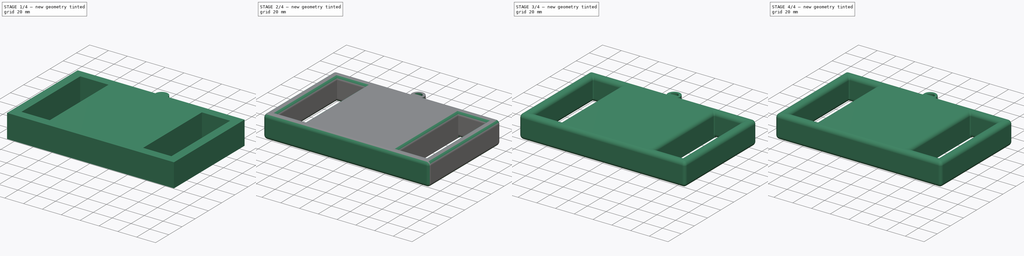
[diagram: build sequence overview — one tinted view per stage of 4, left to right]
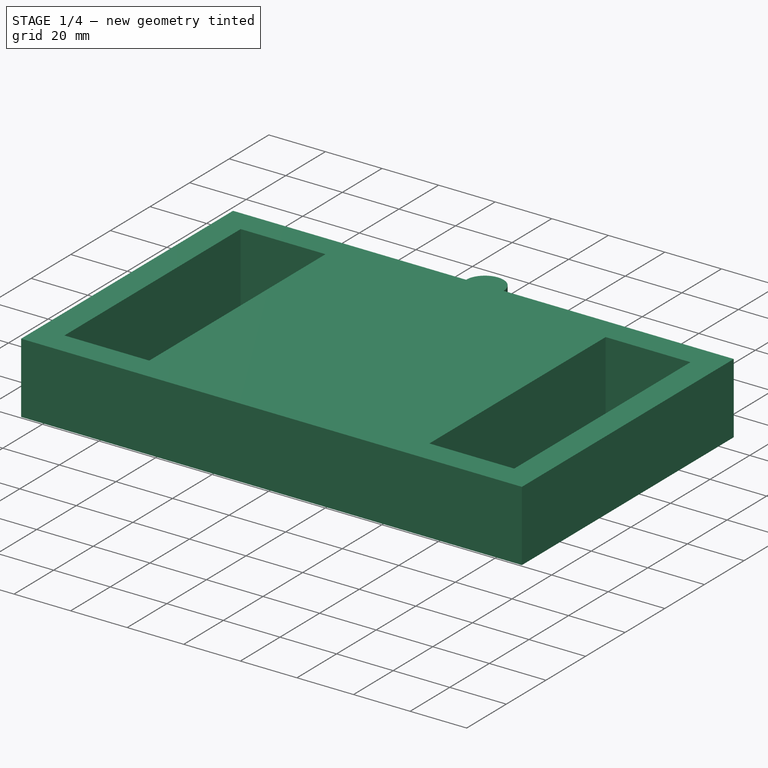
[diagram: stage 1 of 4 — iso view after this stage's code; geometry added in this stage tinted green]
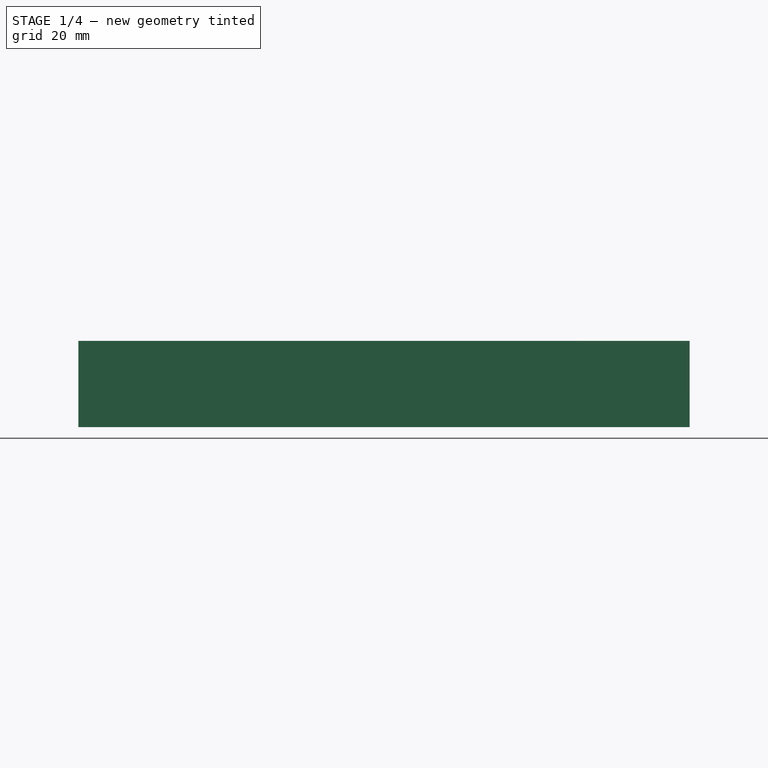
[diagram: stage 1 of 4 — front view after this stage's code; geometry added in this stage tinted green]
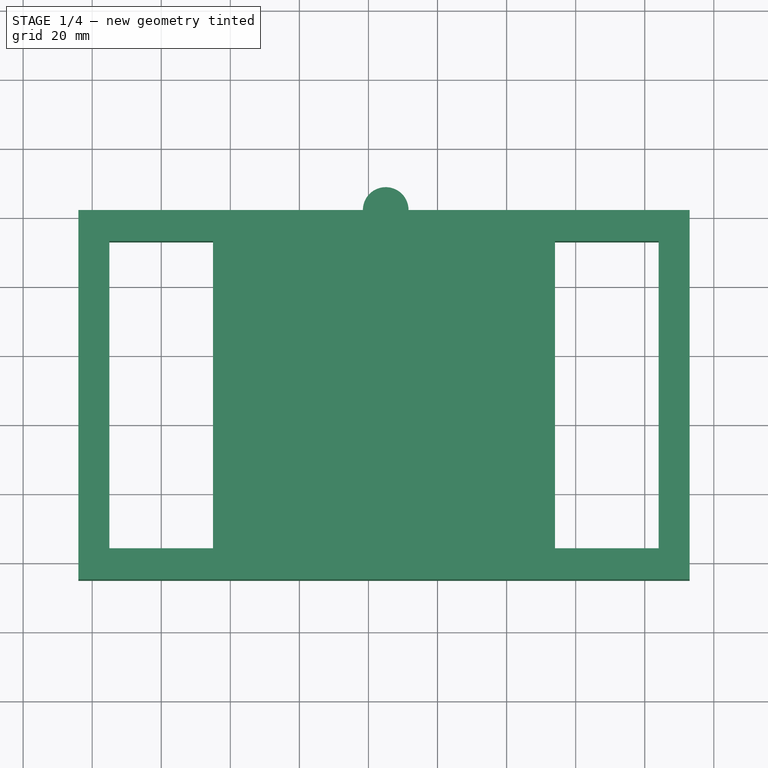
[diagram: stage 1 of 4 — top view after this stage's code; geometry added in this stage tinted green]
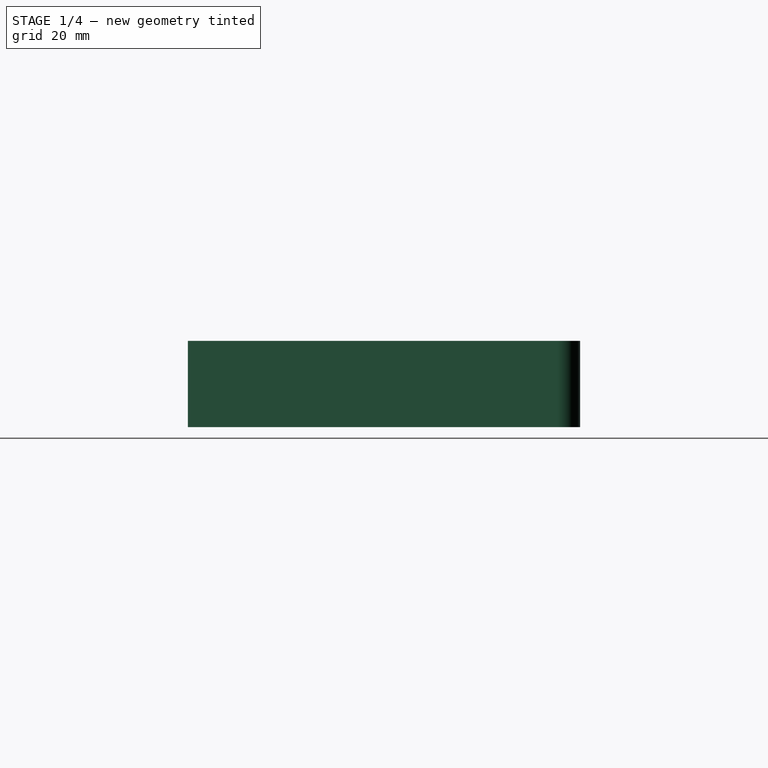
[diagram: stage 1 of 4 — right view after this stage's code; geometry added in this stage tinted green]
FCSTD DOCUMENT  (FreeCAD 0.20R29603 (Git))
Label: Cubierta_Control_Bottom
License: All rights reserved
LicenseURL: http://en.wikipedia.org/wiki/All_rights_reserved
objects: PartDesign::Fillet×7, Sketcher::SketchObject×3, PartDesign::Pocket×2, PartDesign::Pad×1, PartDesign::Body×1
note: 24 computed .brp shape members not serialized (recipe doc carries the construction recipe); baked Part::Feature solids carry a one-line shape summary decoded from their .brp

FEATURE [Sketcher::SketchObject] Sketch  label="Skt_Extrusion"
  FullyConstrained = false
  MapMode = 5
  Support = -> [XY_Plane]
  sketch-geometry (28):
    g0: LineSegment StartX=0 StartY=0 StartZ=0 EndX=91 EndY=0 EndZ=0
    g1: LineSegment StartX=92 StartY=0 StartZ=0 EndX=92 EndY=96 EndZ=0
    g2: LineSegment StartX=92 StartY=96 StartZ=0 EndX=0 EndY=96 EndZ=0
    g3: LineSegment StartX=0 StartY=96 StartZ=0 EndX=0 EndY=0 EndZ=0
    g4: LineSegment StartX=-5 StartY=101.963 StartZ=0 EndX=45.9326 EndY=101.963 EndZ=0
    g5: LineSegment StartX=95.5 StartY=101.963 StartZ=0 EndX=95.5 EndY=-5 EndZ=0
    g6: LineSegment StartX=95.5 StartY=-5 StartZ=0 EndX=-5 EndY=-5 EndZ=0
    g7: LineSegment StartX=-5 StartY=-5 StartZ=0 EndX=-5 EndY=101.963 EndZ=0
    g8: LineSegment StartX=94 StartY=92.9628 StartZ=0 EndX=94 EndY=4 EndZ=0
    g9: LineSegment StartX=-5 StartY=92.9628 StartZ=0 EndX=-5 EndY=6 EndZ=0
    g10: ArcOfCircle CenterX=44.7355 CenterY=101.238 CenterZ=0 NormalX=0 NormalY=0 NormalZ=1 AngleXU=0 Radius=4 StartAngle=0.182163 EndAngle=2.95943
    g11: ArcOfCircle CenterX=45 CenterY=101.963 CenterZ=0 NormalX=0 NormalY=0 NormalZ=1 AngleXU=0 Radius=6.60932 StartAngle=3e-16 EndAngle=3.14159
    g12: LineSegment StartX=-0.794531 StartY=101.963 StartZ=0 EndX=95.5 EndY=101.963 EndZ=0
    g13: LineSegment StartX=-5 StartY=101.963 StartZ=0 EndX=38.3907 EndY=101.963 EndZ=0
    g14: LineSegment StartX=95.5 StartY=101.963 StartZ=0 EndX=51.6093 EndY=101.963 EndZ=0
    g15: LineSegment StartX=95.5 StartY=101.963 StartZ=0 EndX=133 EndY=101.963 EndZ=0
    g16: LineSegment StartX=133 StartY=101.963 StartZ=0 EndX=133 EndY=-5 EndZ=0
    g17: LineSegment StartX=95.5 StartY=-5 StartZ=0 EndX=133 EndY=-5 EndZ=0
    g18: LineSegment StartX=94 StartY=92.9628 StartZ=0 EndX=124 EndY=92.9628 EndZ=0
    g19: LineSegment StartX=124 StartY=92.9628 StartZ=0 EndX=124 EndY=4 EndZ=0
    g20: LineSegment StartX=94 StartY=4 StartZ=0 EndX=124 EndY=4 EndZ=0
    g21: LineSegment StartX=-5 StartY=92.9628 StartZ=0 EndX=-35 EndY=92.9628 EndZ=0
    g22: LineSegment StartX=-35 StartY=92.9628 StartZ=0 EndX=-35 EndY=4 EndZ=0
    g23: LineSegment StartX=-35 StartY=4 StartZ=0 EndX=-5 EndY=4 EndZ=0
    g24: LineSegment StartX=-5 StartY=4 StartZ=0 EndX=-5 EndY=92.9628 EndZ=0
    g25: LineSegment StartX=-5 StartY=101.963 StartZ=0 EndX=-44 EndY=101.963 EndZ=0
    g26: LineSegment StartX=-44 StartY=101.963 StartZ=0 EndX=-44 EndY=-5 EndZ=0
    g27: LineSegment StartX=-44 StartY=-5 StartZ=0 EndX=-5 EndY=-5 EndZ=0
  constraints (74):
    c: Coincident(g1,g2)
    c: Coincident(g2,g3)
    c: Coincident(g3,g0)
    c: Horizontal(g0)
    c: Horizontal(g2)
    c: Vertical(g1)
    c: Vertical(g3)
    c: Coincident(g0,g-1)
    c: DistanceY(g3,g3) = 96
    c: DistanceX(g2,g2) = 92
    c: Coincident(g12,g5)
    c: Coincident(g5,g6)
    c: Coincident(g6,g7)
    c: Coincident(g7,g4)
    c: Horizontal(g4)
    c: Horizontal(g6)
    c: Vertical(g5)
    c: Vertical(g7)
    c: DistanceY(g5,g0) = 5
    c: DistanceX(g4,g2) = 5
    c: Vertical(g9)
    c: PointOnObject(g11,g4)
    c: PointOnObject(g10,g4)
    c: Radius(g10) = 4
    c: Coincident(g13,g11)
    c: Coincident(g14,g11)
    c: Coincident(g15,g5)
    c: Horizontal(g15)
    c: Coincident(g16,g15)
    c: Vertical(g16)
    c: Coincident(g17,g6)
    c: Coincident(g17,g16)
    c: Horizontal(g17)
    c: Tangent(g13,g12)
    c: Tangent(g14,g12)
    c: Coincident(g18,g8)
    c: Horizontal(g18)
    c: Coincident(g19,g18)
    c: Vertical(g19)
    c: Coincident(g20,g8)
    c: Coincident(g20,g19)
    c: Horizontal(g20)
    c: DistanceX(g18,g15) = 9
    c: DistanceX(g1,g8) = 2
    c: DistanceX(g8,g18) = 30
    c: Coincident(g14,g15)
    c: PointOnObject(g10,g4)
    c: Coincident(g21,g22)
    c: Coincident(g22,g23)
    c: Coincident(g23,g24)
    c: Coincident(g24,g21)
    c: Horizontal(g21)
    c: Horizontal(g23)
    c: Vertical(g22)
    c: Vertical(g24)
    c: Coincident(g21,g9)
    c: Horizontal(g14)
    c: DistanceY(g18,g15) = 9
    c: Coincident(g13,g4)
    c: PointOnObject(g21,g7)
    c: Coincident(g25,g13)
    c: Horizontal(g25)
    c: Coincident(g26,g25)
    c: Vertical(g26)
    c: Coincident(g27,g26)
    c: Coincident(g27,g6)
    c: Horizontal(g27)
    c: Vertical(g8)
    c: DistanceX(g21,g21) = 30
    c: DistanceX(g25,g21) = 9
    c: DistanceY(g21,g25) = 9
    c: DistanceY(g26,g22) = 9
    c: DistanceY(g6,g8) = 9
    c: DistanceX(g2,g11) = 45
FEATURE [PartDesign::Pad] Pad
  AllowMultiFace = false
  Direction = (0,0,1)
  Length = 25
  Length2 = 100
  Profile = -> Sketch
  Type = 0
FEATURE [Sketcher::SketchObject] Sketch001  label="Skt_CorteCentral"
  FullyConstrained = false
  MapMode = 5
  expr: Constraints[40] = 95 / 2
  sketch-geometry (19):
    g0: LineSegment StartX=0 StartY=0 StartZ=0 EndX=92 EndY=0 EndZ=0
    g1: LineSegment StartX=92 StartY=0 StartZ=0 EndX=92 EndY=96 EndZ=0
    g2: LineSegment StartX=92 StartY=96 StartZ=0 EndX=0 EndY=96 EndZ=0
    g3: LineSegment StartX=0 StartY=96 StartZ=0 EndX=0 EndY=0 EndZ=0
    g4: LineSegment StartX=-7 StartY=103 StartZ=0 EndX=99 EndY=103 EndZ=0
    g5: LineSegment StartX=99 StartY=103 StartZ=0 EndX=99 EndY=-7 EndZ=0
    g6: LineSegment StartX=99 StartY=-7 StartZ=0 EndX=-7 EndY=-7 EndZ=0
    g7: LineSegment StartX=-7 StartY=-7 StartZ=0 EndX=-7 EndY=103 EndZ=0
    g8: Circle CenterX=99 CenterY=90 CenterZ=0 NormalX=0 NormalY=0 NormalZ=1 AngleXU=0 Radius=6
    g9: Circle CenterX=139.291 CenterY=48.5 CenterZ=0 NormalX=0 NormalY=0 NormalZ=1 AngleXU=0 Radius=6
    g10: Circle CenterX=99 CenterY=6 CenterZ=0 NormalX=0 NormalY=0 NormalZ=1 AngleXU=0 Radius=6
    g11: BSplineCurve PolesCount=3 KnotsCount=2 Degree=2 IsPeriodic=0
    g12: GeomPoint X=99 Y=90 Z=0
    g13: GeomPoint X=99 Y=6 Z=0
    g14: BSplineCurve PolesCount=3 KnotsCount=2 Degree=2 IsPeriodic=0
    g15: BSplineCurve PolesCount=3 KnotsCount=2 Degree=2 IsPeriodic=0
    g16: BSplineCurve PolesCount=3 KnotsCount=2 Degree=2 IsPeriodic=0
    g17: LineSegment StartX=99 StartY=90 StartZ=0 EndX=99 EndY=6 EndZ=0
    g18: LineSegment StartX=-7 StartY=90 StartZ=0 EndX=-7 EndY=6 EndZ=0
  constraints (48):
    c: Coincident(g1,g2)
    c: Coincident(g2,g3)
    c: Coincident(g3,g0)
    c: Horizontal(g0)
    c: Horizontal(g2)
    c: Vertical(g1)
    c: Vertical(g3)
    c: Coincident(g0,g-1)
    c: DistanceY(g3,g3) = 96
    c: DistanceX(g2,g2) = 92
    c: Coincident(g4,g5)
    c: Coincident(g5,g6)
    c: Coincident(g6,g7)
    c: Coincident(g7,g4)
    c: Horizontal(g4)
    c: Horizontal(g6)
    c: Vertical(g5)
    c: Vertical(g7)
    c: DistanceY(g1,g4) = 7
    c: DistanceY(g5,g0) = 7
    c: DistanceX(g4,g2) = 7
    c: Weight(g8) = 1
    c: Equal(g8,g9)
    c: Equal(g8,g10)
    c: InternalAlignment(g8,g11)
    c: InternalAlignment(g9,g11)
    c: InternalAlignment(g10,g11)
    c: InternalAlignment(g12,g11)
    c: InternalAlignment(g13,g11)
    c: Equal(g11,g14) = 80
    c: Coincident(g14,g4)
    c: Coincident(g14,g5)
    c: Coincident(g16,g4)
    c: Coincident(g16,g6)
    c: PointOnObject(g11,g5)
    c: DistanceX(g1,g6) = 7
    c: Coincident(g0,g1)
    c: Coincident(g17,g11)
    c: Coincident(g17,g11)
    c: Vertical(g17)
    c: DistanceY(g9,g1) = 47.5
    c: DistanceY(g11,g1) = 6
    c: DistanceY(g0,g11) = 6
    c: PointOnObject(g15,g7)
    c: DistanceY(g15,g2) = 6
    c: Coincident(g18,g15)
    c: Coincident(g18,g15)
    c: Vertical(g18)
FEATURE [PartDesign::Pocket] Pocket
  AllowMultiFace = false
  BaseFeature = -> Pad
  Direction = (0,0,-1)
  Length = 21
  Length2 = 100
  Profile = -> Sketch001
  ReferenceAxis = -> Sketch001 [N_Axis]
  Reversed = true
  Type = 0
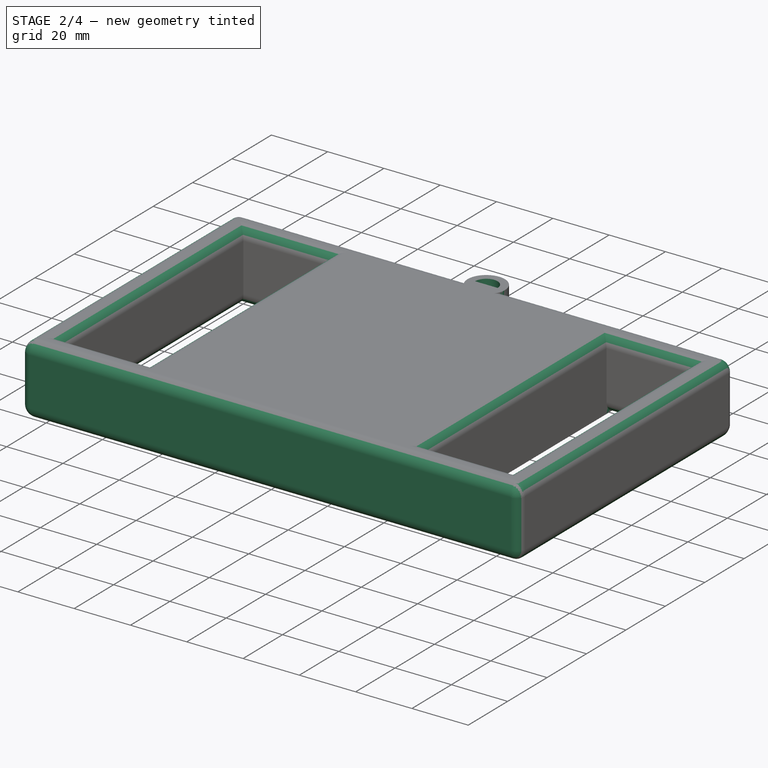
[diagram: stage 2 of 4 — iso view after this stage's code; geometry added in this stage tinted green]
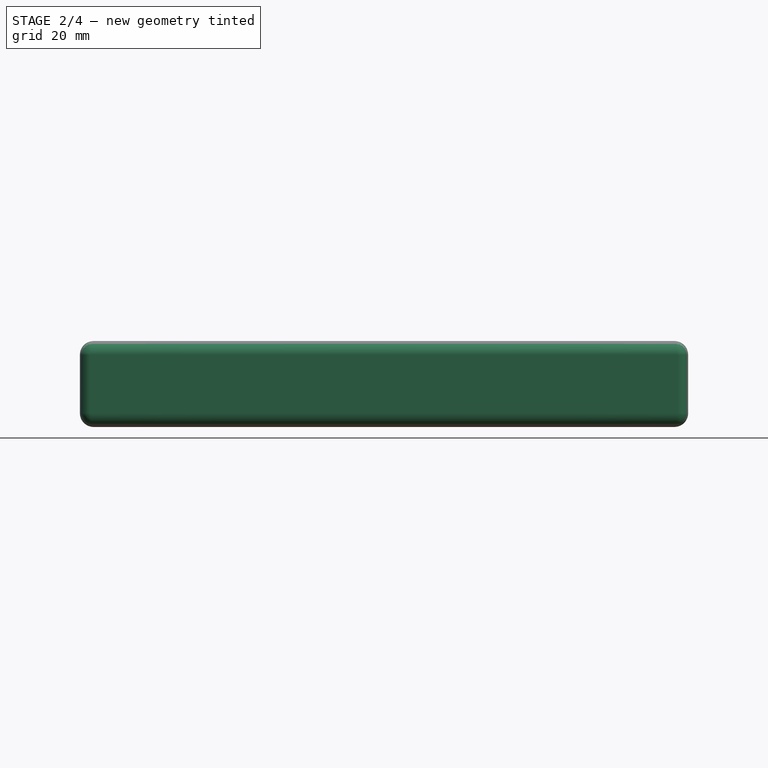
[diagram: stage 2 of 4 — front view after this stage's code; geometry added in this stage tinted green]
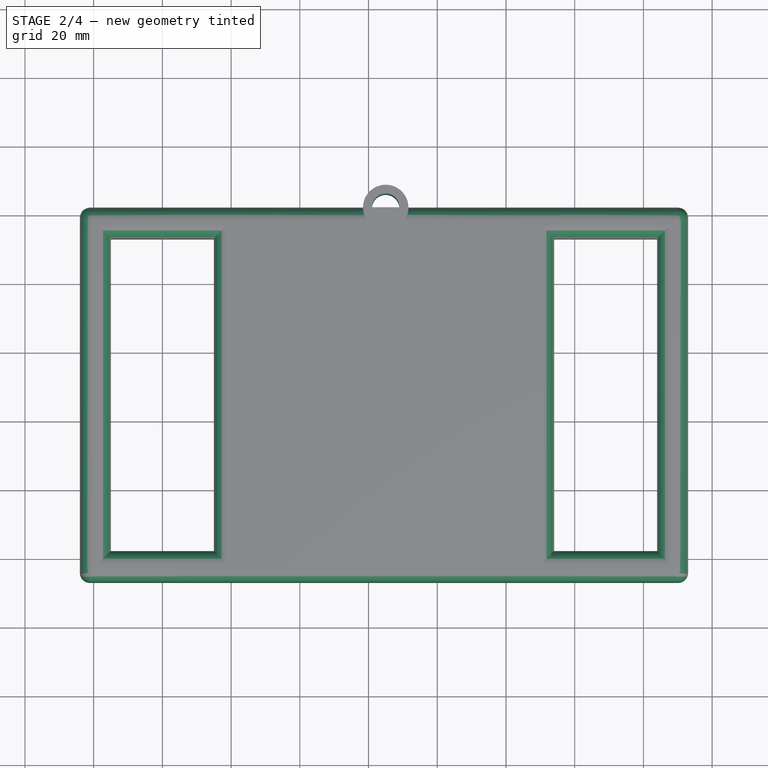
[diagram: stage 2 of 4 — top view after this stage's code; geometry added in this stage tinted green]
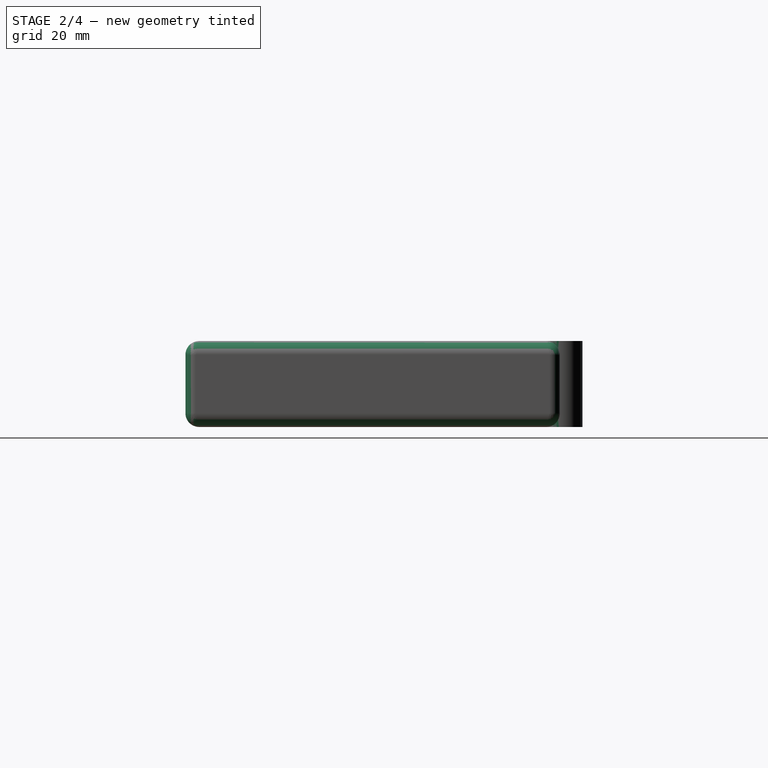
[diagram: stage 2 of 4 — right view after this stage's code; geometry added in this stage tinted green]
FEATURE [Sketcher::SketchObject] CopySketch002  label="Skt_Corte_Ovillo"
  FullyConstrained = false
  sketch-geometry (25):
    g0: LineSegment StartX=0 StartY=0 StartZ=0 EndX=91 EndY=0 EndZ=0
    g1: LineSegment StartX=91 StartY=0 StartZ=0 EndX=91 EndY=95 EndZ=0
    g2: LineSegment StartX=91 StartY=95 StartZ=0 EndX=0 EndY=95 EndZ=0
    g3: LineSegment StartX=0 StartY=95 StartZ=0 EndX=0 EndY=0 EndZ=0
    g4: LineSegment StartX=-7 StartY=102 StartZ=0 EndX=47.9789 EndY=102 EndZ=0
    g5: LineSegment StartX=104.422 StartY=102 StartZ=0 EndX=104.422 EndY=-7 EndZ=0
    g6: LineSegment StartX=104.422 StartY=-7 StartZ=0 EndX=-7 EndY=-7 EndZ=0
    g7: LineSegment StartX=-7 StartY=-7 StartZ=0 EndX=-7 EndY=102 EndZ=0
    g8: Circle CenterX=104.422 CenterY=88.3857 CenterZ=0 NormalX=0 NormalY=0 NormalZ=1 AngleXU=0 Radius=6
    g9: Circle CenterX=139.291 CenterY=47.5 CenterZ=0 NormalX=0 NormalY=0 NormalZ=1 AngleXU=0 Radius=6
    g10: Circle CenterX=104.422 CenterY=4.41859 CenterZ=0 NormalX=0 NormalY=0 NormalZ=1 AngleXU=0 Radius=6
    g11: BSplineCurve PolesCount=3 KnotsCount=2 Degree=2 IsPeriodic=0
    g12: GeomPoint X=104.422 Y=88.3857 Z=0
    g13: GeomPoint X=104.422 Y=4.41859 Z=0
    g14: BSplineCurve PolesCount=3 KnotsCount=2 Degree=2 IsPeriodic=0
    g15: BSplineCurve PolesCount=3 KnotsCount=2 Degree=2 IsPeriodic=0
    g16: BSplineCurve PolesCount=3 KnotsCount=2 Degree=2 IsPeriodic=0
    g17: LineSegment StartX=104.422 StartY=88.3857 StartZ=0 EndX=104.422 EndY=4.41859 EndZ=0
    g18: LineSegment StartX=-7 StartY=89 StartZ=0 EndX=-7 EndY=6 EndZ=0
    g19: ArcOfCircle CenterX=45 CenterY=102 CenterZ=0 NormalX=0 NormalY=0 NormalZ=1 AngleXU=0 Radius=4 StartAngle=2.8e-15 EndAngle=3.14159
    g20: ArcOfCircle CenterX=45 CenterY=102 CenterZ=0 NormalX=0 NormalY=0 NormalZ=1 AngleXU=0 Radius=6.92194 StartAngle=-1.8e-15 EndAngle=3.14159
    g21: LineSegment StartX=47.2425 StartY=102 StartZ=0 EndX=104.422 EndY=102 EndZ=0
    g22: LineSegment StartX=-7 StartY=102 StartZ=0 EndX=38.0781 EndY=102 EndZ=0
    g23: LineSegment StartX=104.422 StartY=102 StartZ=0 EndX=51.9219 EndY=102 EndZ=0
    g24: LineSegment StartX=41 StartY=102 StartZ=0 EndX=49 EndY=102 EndZ=0
  constraints (56):
    c: Coincident(g1,g2)
    c: Coincident(g2,g3)
    c: Coincident(g3,g0)
    c: Horizontal(g0)
    c: Horizontal(g2)
    c: Vertical(g1)
    c: Vertical(g3)
    c: Coincident(g0,g-1)
    c: DistanceY(g3,g3) = 95
    c: DistanceX(g2,g2) = 91
    c: Coincident(g21,g5)
    c: Coincident(g5,g6)
    c: Coincident(g6,g7)
    c: Coincident(g7,g4)
    c: Horizontal(g4)
    c: Horizontal(g6)
    c: Vertical(g5)
    c: Vertical(g7)
    c: DistanceY(g1,g21) = 7
    c: DistanceY(g5,g0) = 7
    c: DistanceX(g4,g2) = 7
    c: Weight(g8) = 1
    c: Equal(g8,g9)
    c: Equal(g8,g10)
    c: InternalAlignment(g8,g11)
    c: InternalAlignment(g9,g11)
    c: InternalAlignment(g10,g11)
    c: InternalAlignment(g12,g11)
    c: InternalAlignment(g13,g11)
    c: Equal(g11,g14) = 80
    c: Coincident(g14,g21)
    c: Coincident(g14,g5)
    c: Coincident(g16,g4)
    c: Coincident(g16,g6)
    c: PointOnObject(g11,g5)
    c: Coincident(g18,g15)
    c: Vertical(g18)
    c: PointOnObject(g20,g4)
    c: PointOnObject(g19,g4)
    c: Radius(g19) = 4
    c: Coincident(g22,g16)
    c: Coincident(g22,g20)
    c: Horizontal(g22)
    c: Coincident(g23,g14)
    c: Coincident(g23,g20)
    c: Horizontal(g23)
    c: Coincident(g11,g17)
    c: Coincident(g17,g11)
    c: PointOnObject(g11,g5)
    c: Coincident(g24,g19)
    c: Coincident(g24,g19)
    c: Horizontal(g24)
    c: PointOnObject(g4,g21)
    c: Horizontal(g21)
    c: Coincident(g19,g20)
    c: DistanceX(g2,g19) = 45
FEATURE [PartDesign::Pocket] Pocket001
  AllowMultiFace = false
  BaseFeature = -> Pocket
  Direction = (0,0,-1)
  Length = 11
  Length2 = 100
  Profile = -> CopySketch002
  Reversed = true
  Type = 1
FEATURE [PartDesign::Fillet] Fillet  label="Fillet_Aristas largas"
  Base = -> Pocket001 [Edge10,Edge4,Edge34,Edge38,Edge37,Edge48,Edge47,Edge45,Edge46,Edge42,Edge41,Edge44,Edge43,Edge17,Edge16,Edge31,Edge30,Edge28,Edge29,Edge15,Edge27,Edge26,Edge25,Edge3,Edge9]
  BaseFeature = -> Pocket001
  Radius = 4
  SupportTransform = false
  UseAllEdges = false
FEATURE [PartDesign::Fillet] Fillet001  label="Redondeo_esquinas"
  Base = -> Fillet [Edge141,Edge140,Edge16,Edge4]
  BaseFeature = -> Fillet
  Radius = 3
  SupportTransform = false
  UseAllEdges = false
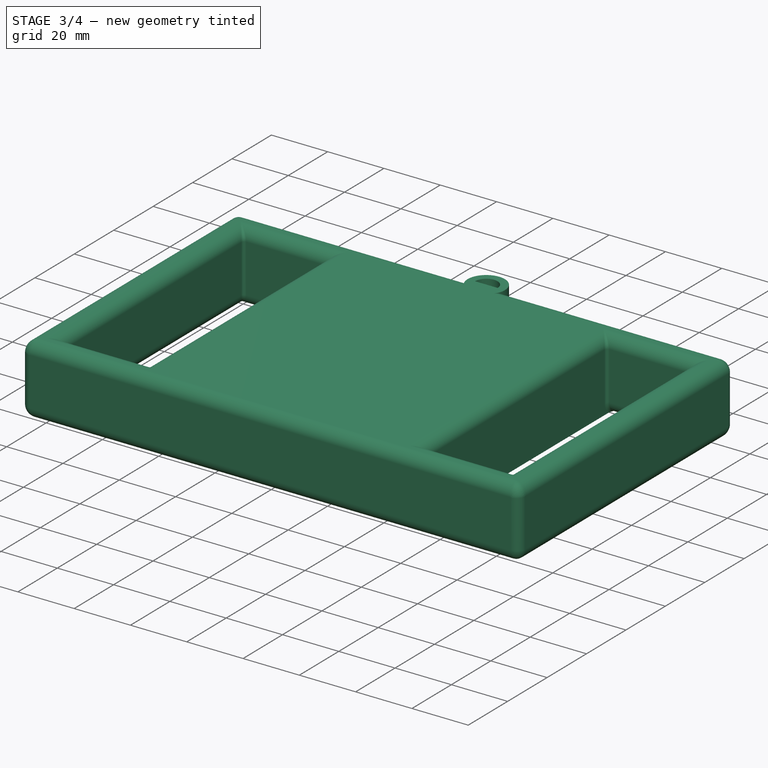
[diagram: stage 3 of 4 — iso view after this stage's code; geometry added in this stage tinted green]
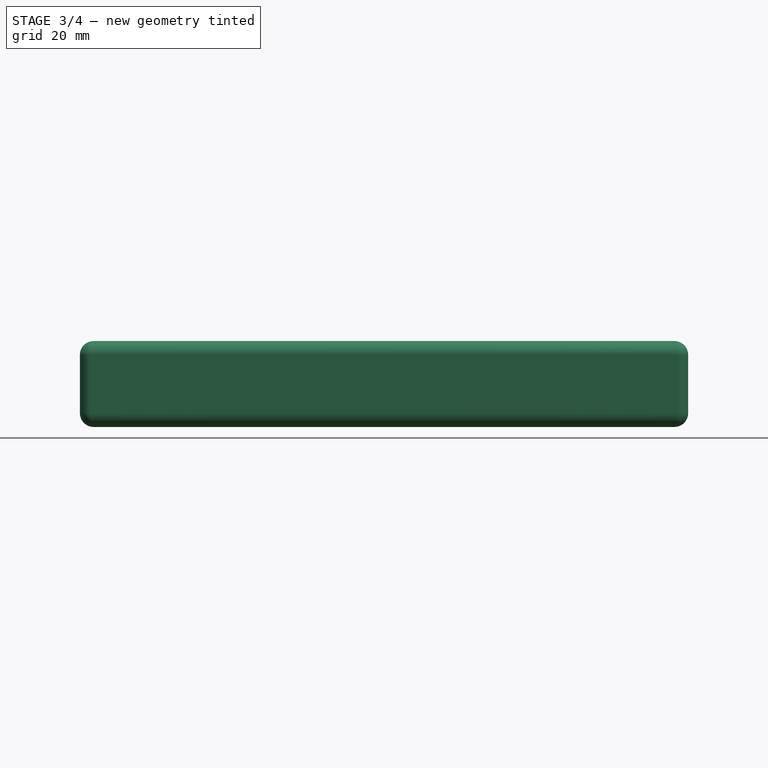
[diagram: stage 3 of 4 — front view after this stage's code; geometry added in this stage tinted green]
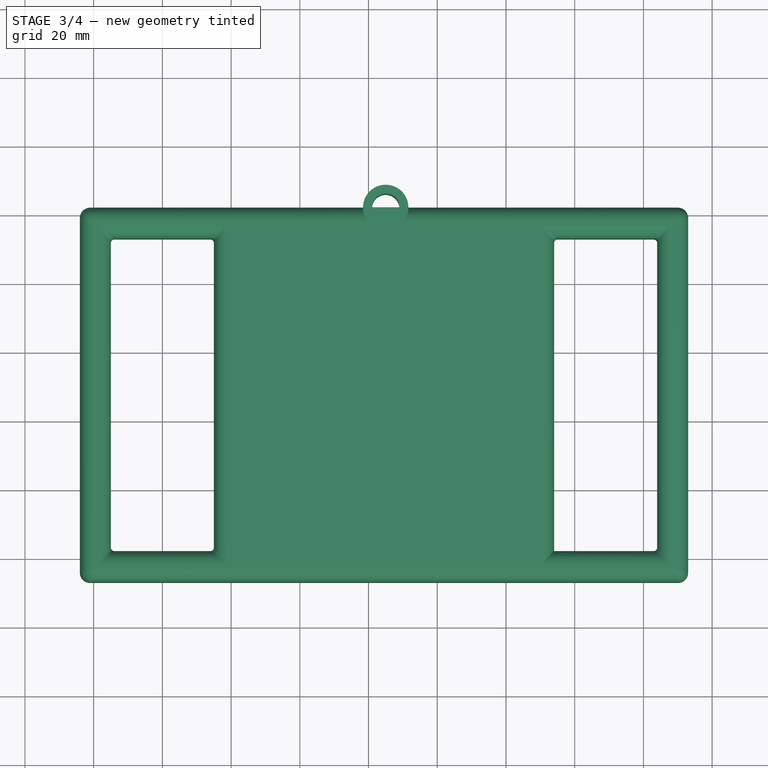
[diagram: stage 3 of 4 — top view after this stage's code; geometry added in this stage tinted green]
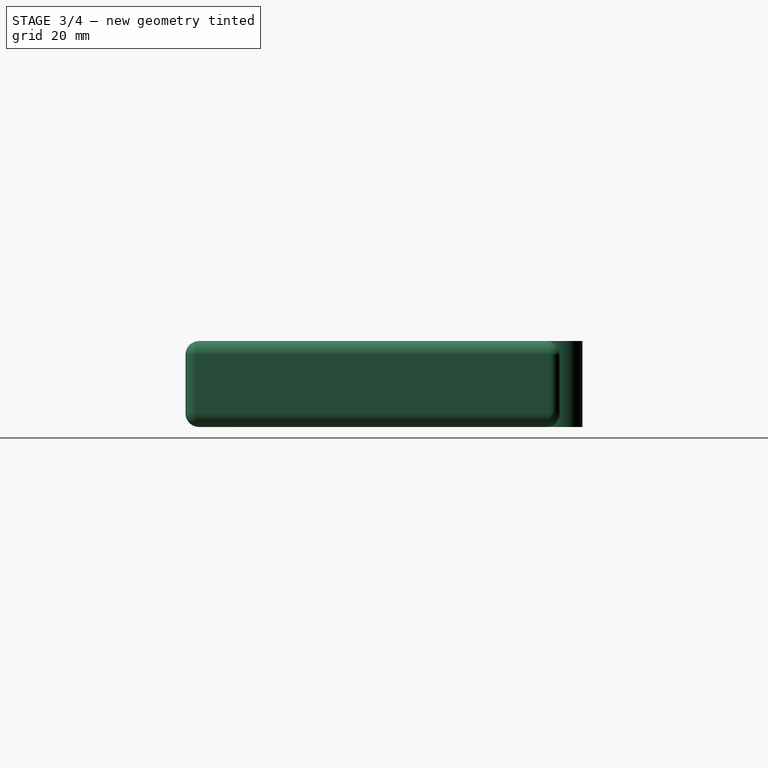
[diagram: stage 3 of 4 — right view after this stage's code; geometry added in this stage tinted green]
FEATURE [PartDesign::Fillet] Fillet002
  Base = -> Fillet001 [Edge167,Edge169,Edge170,Edge168]
  BaseFeature = -> Fillet001
  Radius = 1
  SupportTransform = false
  UseAllEdges = false
FEATURE [PartDesign::Fillet] Fillet003  label="Redondeo_esquinasSujetador_L1_1"
  Base = -> Fillet002 [Edge167,Edge171]
  BaseFeature = -> Fillet002
  Radius = 1
  SupportTransform = false
  UseAllEdges = false
FEATURE [PartDesign::Fillet] Fillet004  label="Redondeo_esquinasSujetador_L2_1"
  Base = -> Fillet003 [Edge11]
  BaseFeature = -> Fillet003
  Radius = 1
  SupportTransform = false
  UseAllEdges = false
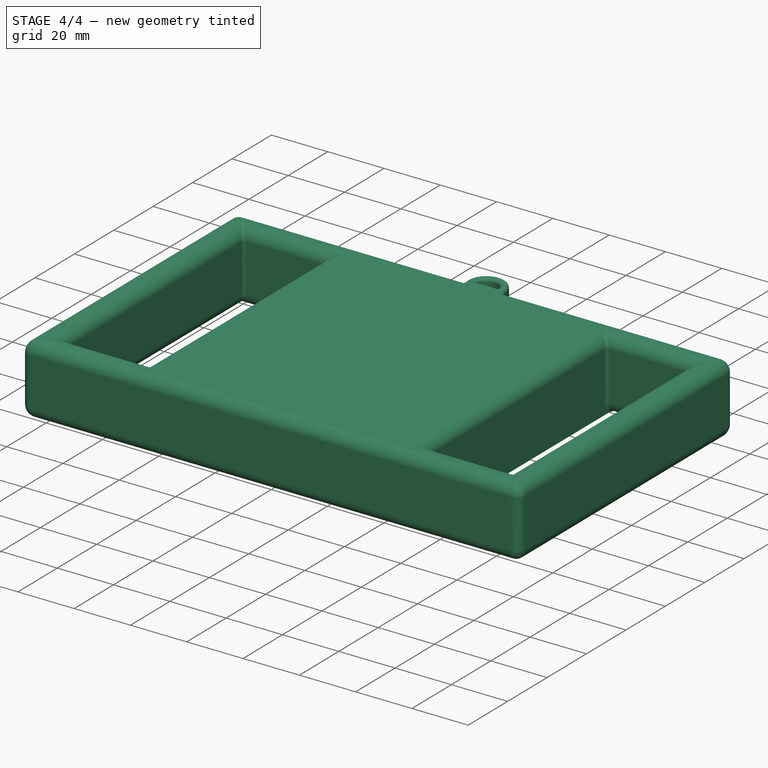
[diagram: stage 4 of 4 — iso view after this stage's code; geometry added in this stage tinted green]
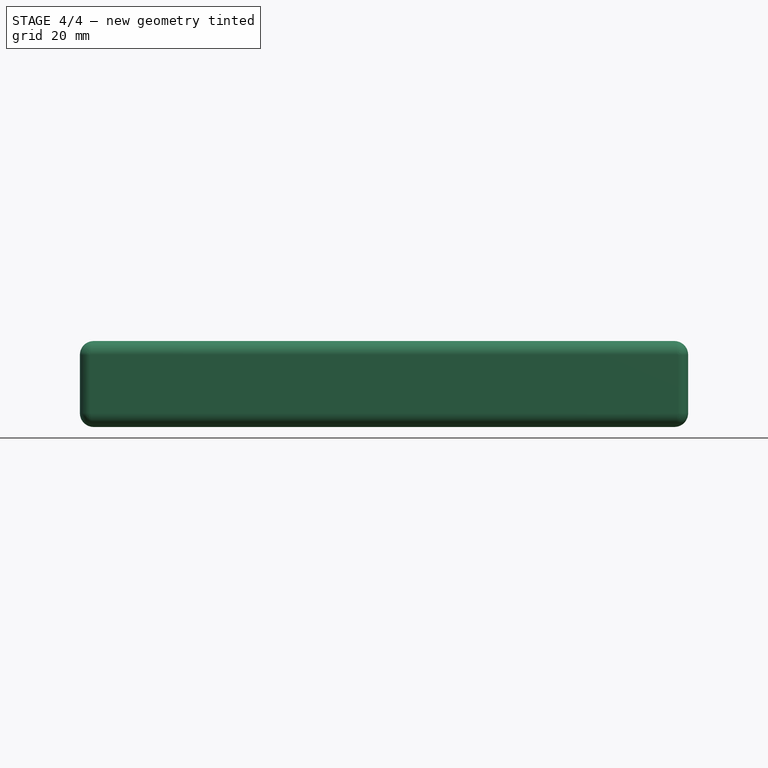
[diagram: stage 4 of 4 — front view after this stage's code; geometry added in this stage tinted green]
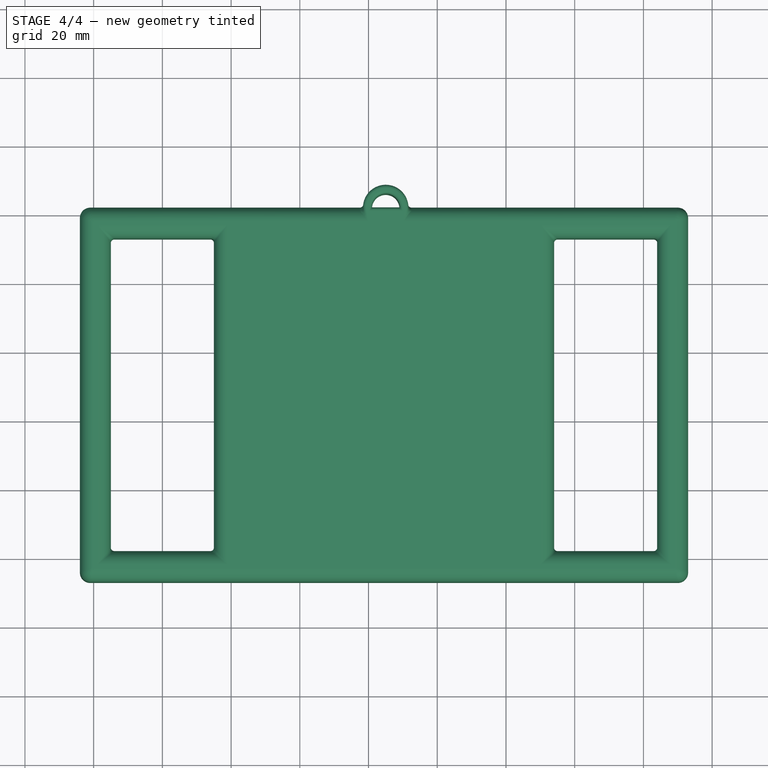
[diagram: stage 4 of 4 — top view after this stage's code; geometry added in this stage tinted green]
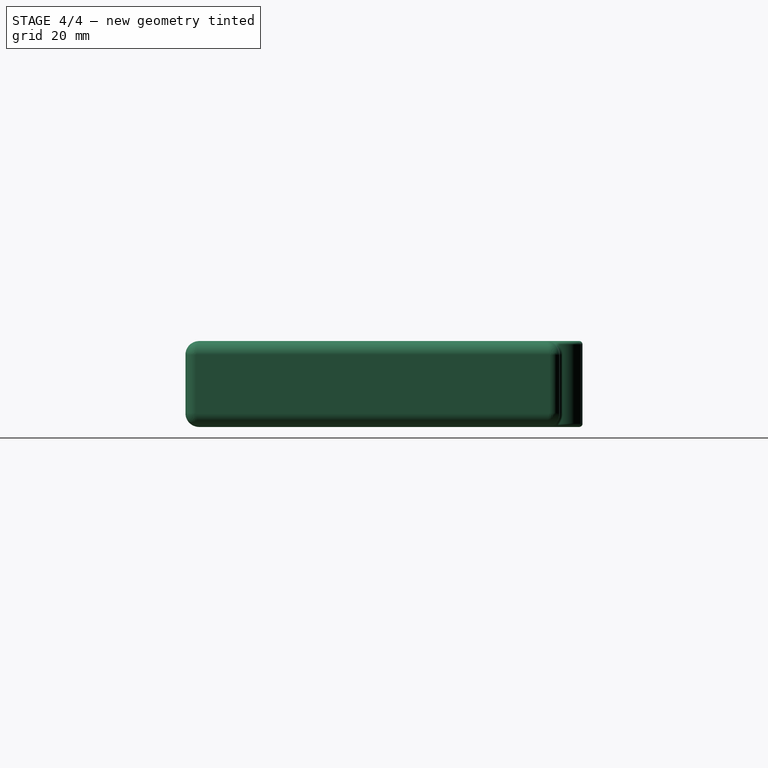
[diagram: stage 4 of 4 — right view after this stage's code; geometry added in this stage tinted green]
FEATURE [PartDesign::Fillet] Fillet005  label="Redondeo_esquinasSujetador_L2_2"
  Base = -> Fillet004 [Edge3]
  BaseFeature = -> Fillet004
  Radius = 1
  SupportTransform = false
  UseAllEdges = false
FEATURE [PartDesign::Fillet] Fillet006  label="Redondeo_aristas_ojillo"
  Base = -> Fillet005 [Edge54,Edge65,Edge66,Edge43,Edge44,Edge28,Edge87,Edge92]
  BaseFeature = -> Fillet005
  Radius = 1
  SupportTransform = false
  UseAllEdges = false
FEATURE [PartDesign::Body] Body
  Group = -> [Sketch,Pad,Pocket,Pocket001,Fillet,Fillet001,Fillet002,Fillet003,Fillet004,Fillet005,Fillet006]
  Origin = -> Origin
  Tip = -> Fillet006
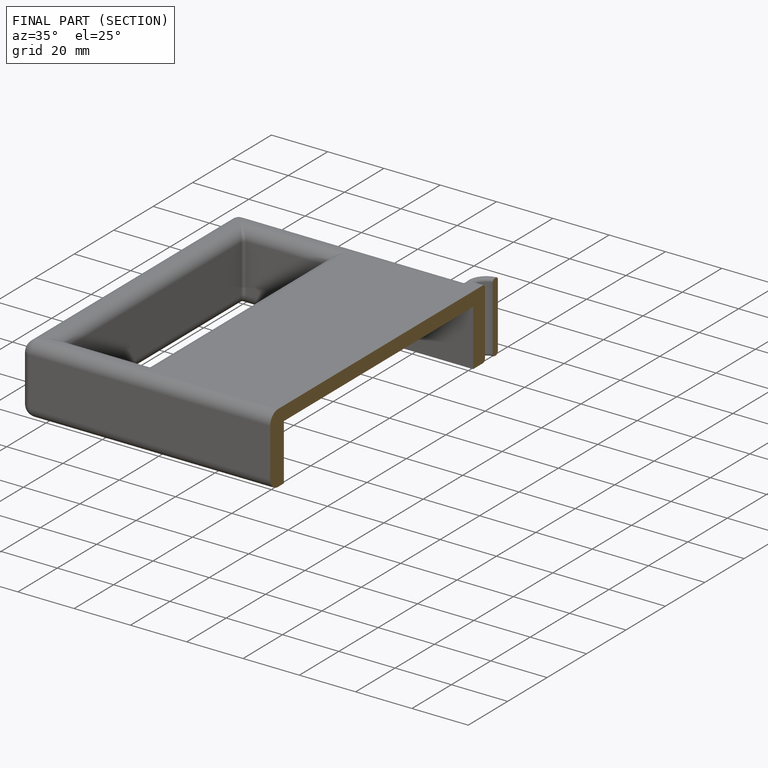
[diagram: finished part — half-section view (interior)]
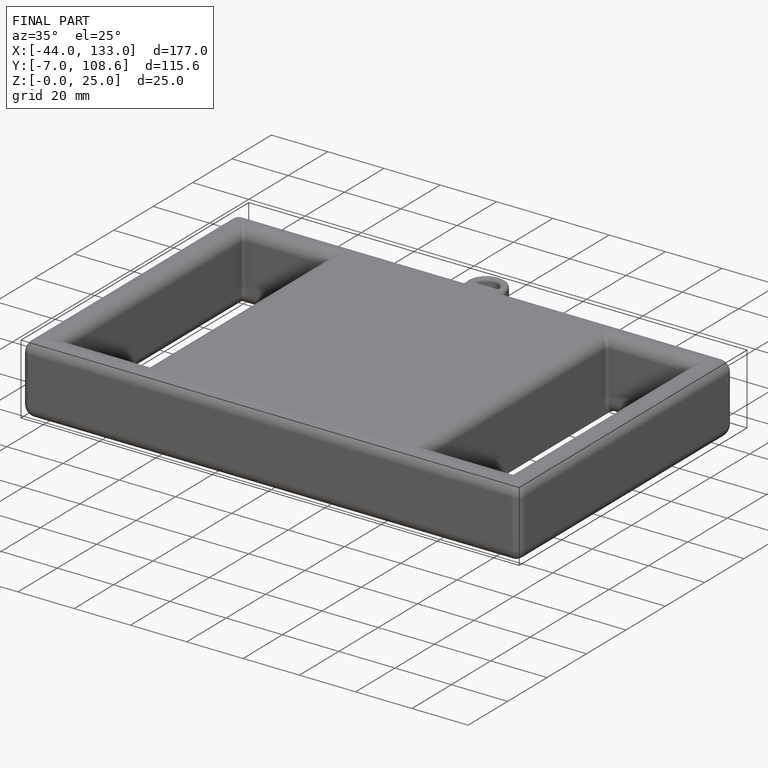
[diagram: finished part — iso view with bounding-box wireframe]
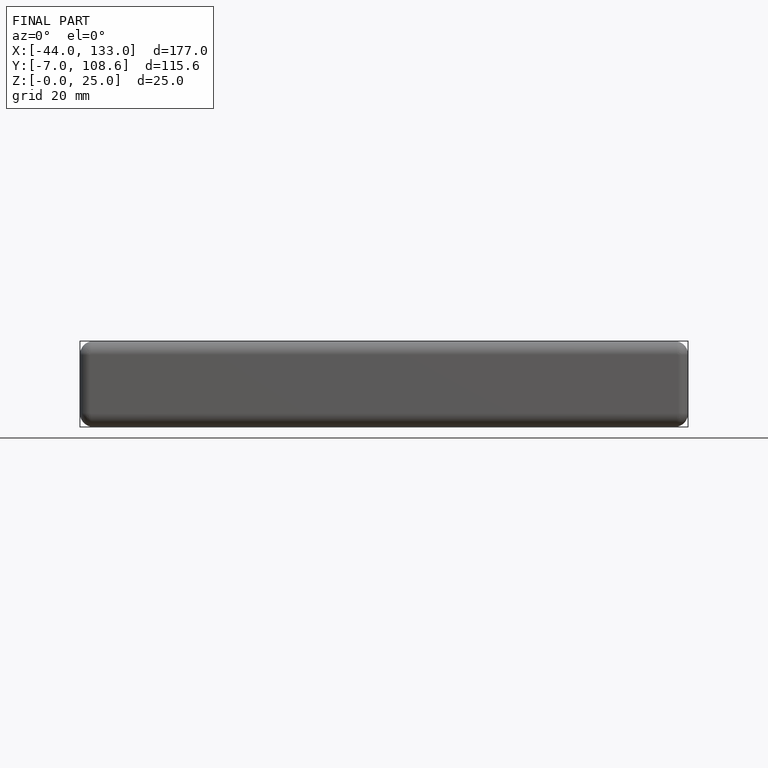
[diagram: finished part — front view with bounding-box wireframe]
